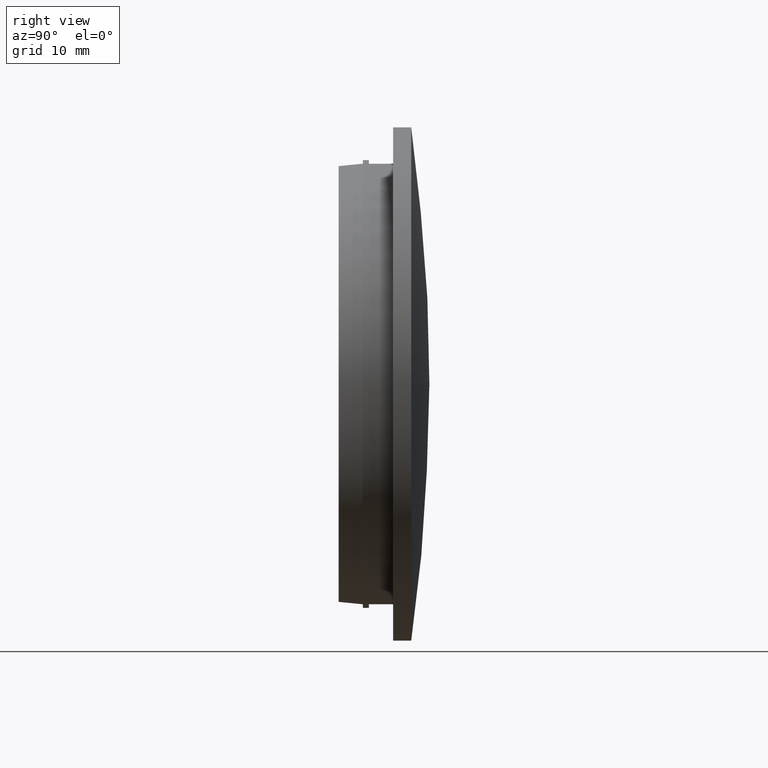
[diagram: clean part render]
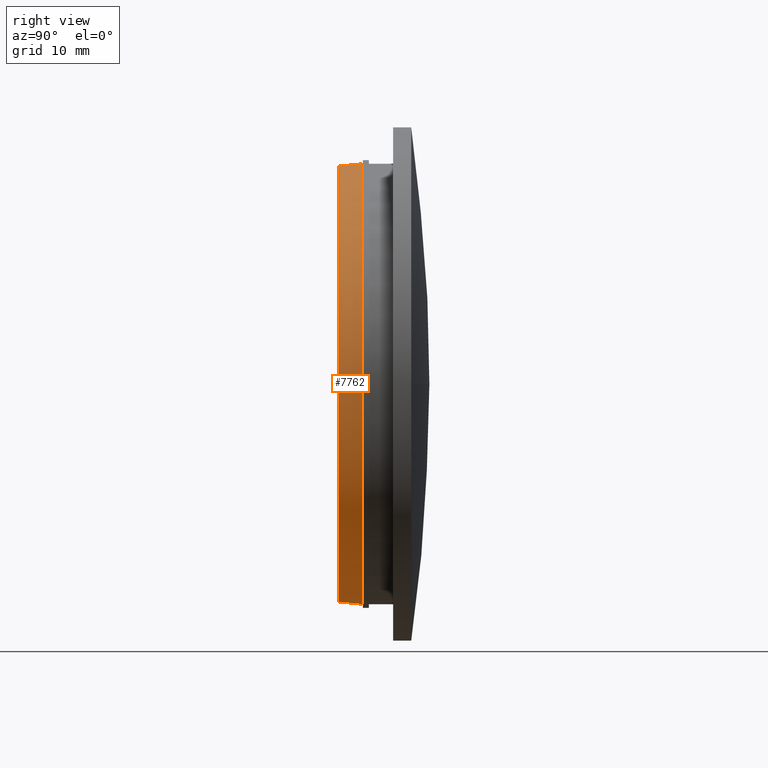
[diagram: same view with one face highlighted and labeled with its STEP entity id]
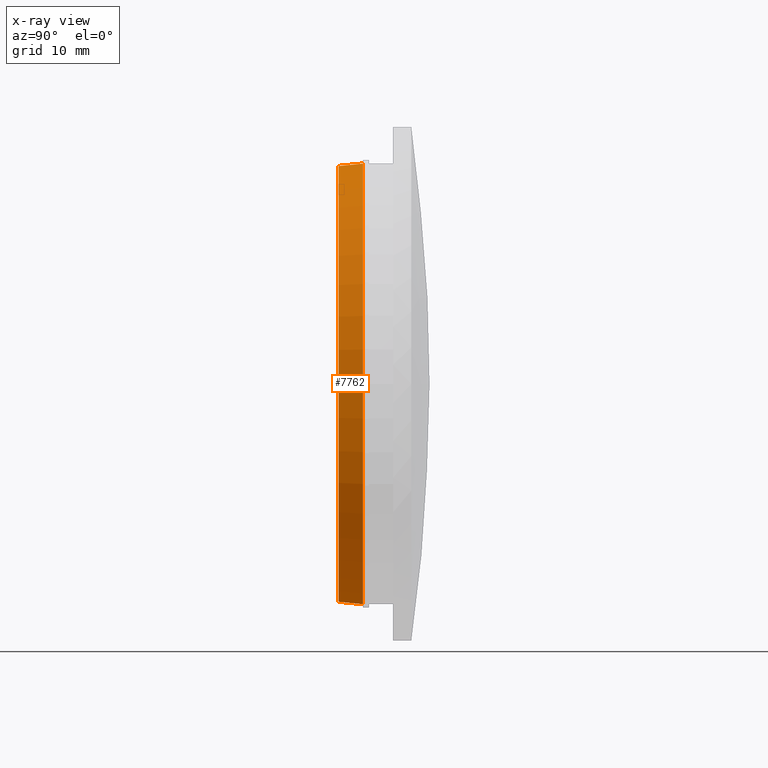
[diagram: x-ray of the same camera — body ghosted, the highlighted face saturated]
A machine part, right view. The second image highlights one B-rep face of the part: STEP entity #7762.
The next image is the same camera in x-ray: the body ghosted, the highlighted face saturated — about 0% of this face is hidden behind the body in this view.
In plain terms, the highlighted conical surface has half-angle 5.711 deg.
Its self-contained STEP definition (entity closure, byte-faithful):
#579 = VERTEX_POINT ( 'NONE', #12415 ) ;
#1276 = CONICAL_SURFACE ( 'NONE', #6261, 18.19999999999999900, 0.09966865249116314800 ) ;
#1534 = ORIENTED_EDGE ( 'NONE', *, *, #9525, .T. ) ;
#1725 = LINE ( 'NONE', #6241, #8898 ) ;
#1819 = CARTESIAN_POINT ( 'NONE',  ( 2.228857174448182900E-015, 2.000000000000000000, -18.19999999999999900 ) ) ;
#2182 = ORIENTED_EDGE ( 'NONE', *, *, #10342, .T. ) ;
#2303 = VERTEX_POINT ( 'NONE', #5364 ) ;
#3638 = AXIS2_PLACEMENT_3D ( 'NONE', #4235, #9298, #9385 ) ;
#4172 = EDGE_CURVE ( 'NONE', #579, #2303, #1725, .T. ) ;
#4235 = CARTESIAN_POINT ( 'NONE',  ( 0.0000000000000000000, 0.0000000000000000000, 0.0000000000000000000 ) ) ;
#4319 = FACE_OUTER_BOUND ( 'NONE', #12141, .T. ) ;
#4387 = VECTOR ( 'NONE', #10902, 1000.000000000000100 ) ;
#4722 = CIRCLE ( 'NONE', #8988, 18.19999999999999900 ) ;
#5305 = DIRECTION ( 'NONE',  ( 0.0000000000000000000, 0.9950371902099889300, 0.09950371902100001200 ) ) ;
#5344 = DIRECTION ( 'NONE',  ( 0.0000000000000000000, 0.0000000000000000000, 1.000000000000000000 ) ) ;
#5350 = CIRCLE ( 'NONE', #3638, 18.00000000000000000 ) ;
#5364 = CARTESIAN_POINT ( 'NONE',  ( 0.0000000000000000000, 2.000000000000000000, 18.19999999999999900 ) ) ;
#5881 = CARTESIAN_POINT ( 'NONE',  ( 2.216610706456709200E-015, 0.0000000000000000000, -18.00000000000000000 ) ) ;
#6170 = DIRECTION ( 'NONE',  ( 0.0000000000000000000, 1.000000000000000000, 0.0000000000000000000 ) ) ;
#6241 = CARTESIAN_POINT ( 'NONE',  ( 0.0000000000000000000, 2.000000000000000000, 18.19999999999999900 ) ) ;
#6261 = AXIS2_PLACEMENT_3D ( 'NONE', #8196, #6170, #7198 ) ;
#6314 = VERTEX_POINT ( 'NONE', #5881 ) ;
#7198 = DIRECTION ( 'NONE',  ( 0.0000000000000000000, 0.0000000000000000000, 1.000000000000000000 ) ) ;
#7762 = ADVANCED_FACE ( 'NONE', ( #4319 ), #1276, .T. ) ;
#8196 = CARTESIAN_POINT ( 'NONE',  ( 0.0000000000000000000, 2.000000000000000000, 0.0000000000000000000 ) ) ;
#8444 = VERTEX_POINT ( 'NONE', #13235 ) ;
#8898 = VECTOR ( 'NONE', #5305, 1000.000000000000100 ) ;
#8988 = AXIS2_PLACEMENT_3D ( 'NONE', #9355, #10475, #5344 ) ;
#9065 = ORIENTED_EDGE ( 'NONE', *, *, #10852, .T. ) ;
#9298 = DIRECTION ( 'NONE',  ( 0.0000000000000000000, 1.000000000000000000, 0.0000000000000000000 ) ) ;
#9355 = CARTESIAN_POINT ( 'NONE',  ( 0.0000000000000000000, 2.000000000000000000, 0.0000000000000000000 ) ) ;
#9385 = DIRECTION ( 'NONE',  ( 0.0000000000000000000, 0.0000000000000000000, 1.000000000000000000 ) ) ;
#9525 = EDGE_CURVE ( 'NONE', #579, #6314, #5350, .T. ) ;
#9801 = LINE ( 'NONE', #1819, #4387 ) ;
#10342 = EDGE_CURVE ( 'NONE', #8444, #2303, #4722, .T. ) ;
#10475 = DIRECTION ( 'NONE',  ( -0.0000000000000000000, -1.000000000000000000, -0.0000000000000000000 ) ) ;
#10852 = EDGE_CURVE ( 'NONE', #6314, #8444, #9801, .T. ) ;
#10902 = DIRECTION ( 'NONE',  ( 1.218569110023252800E-017, 0.9950371902099889300, -0.09950371902100001200 ) ) ;
#11151 = ORIENTED_EDGE ( 'NONE', *, *, #4172, .F. ) ;
#12141 = EDGE_LOOP ( 'NONE', ( #1534, #9065, #2182, #11151 ) ) ;
#12415 = CARTESIAN_POINT ( 'NONE',  ( 0.0000000000000000000, 0.0000000000000000000, 18.00000000000000000 ) ) ;
#13235 = CARTESIAN_POINT ( 'NONE',  ( 2.228857174448182900E-015, 2.000000000000000000, -18.19999999999999900 ) ) ;